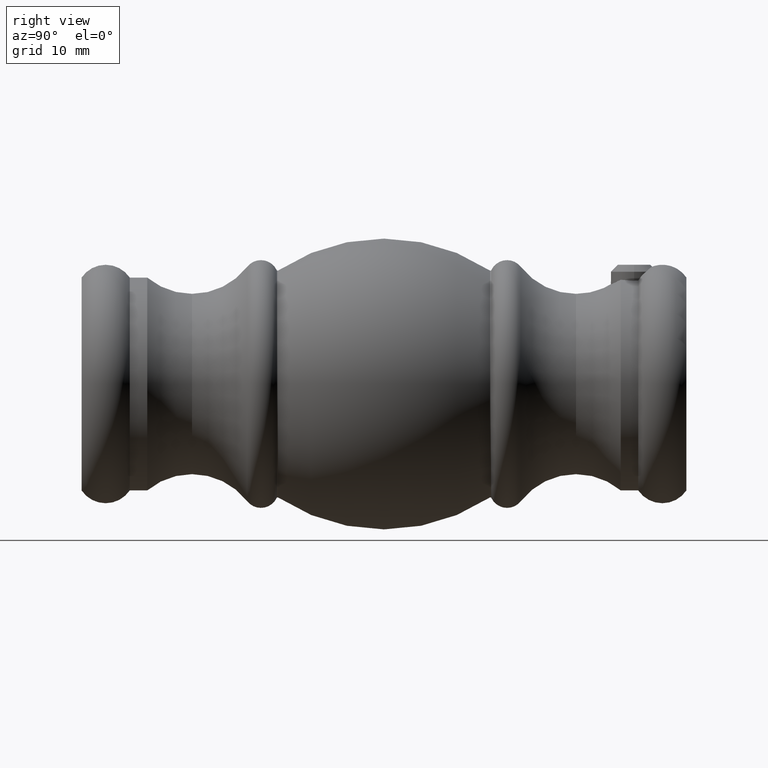
[diagram: clean part render]
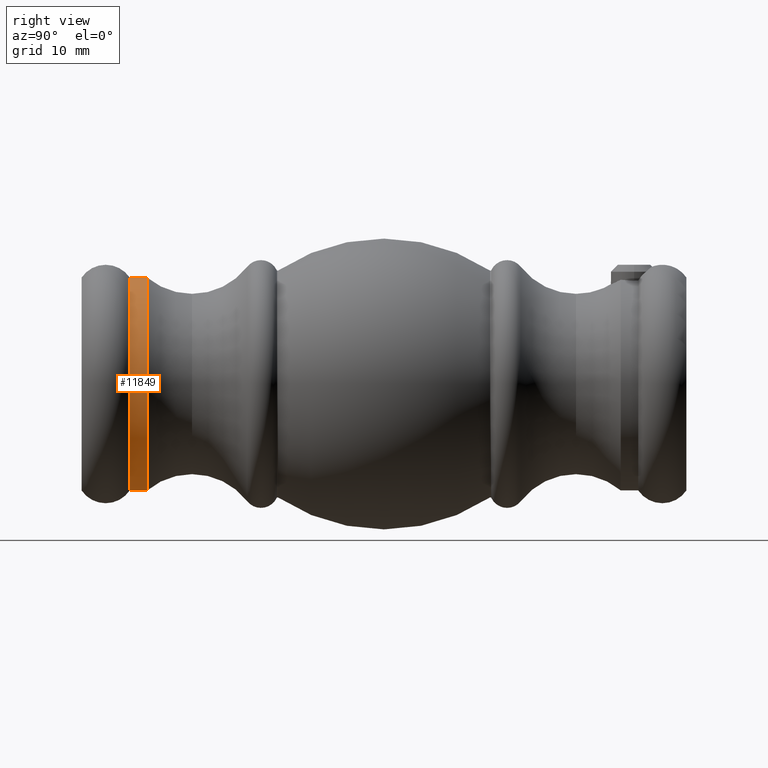
[diagram: same view with one face highlighted and labeled with its STEP entity id]
A machine part, right view. The second image highlights one B-rep face of the part: STEP entity #11849.
In plain terms, the highlighted cylindrical surface (partial cylindrical patch) has radius 9.15 mm, axis along (0, 1, 0).
Its self-contained STEP definition (entity closure, byte-faithful):
#485 = VECTOR ( 'NONE', #4523, 1000.000000000000000 ) ;
#1209 = ORIENTED_EDGE ( 'NONE', *, *, #4643, .T. ) ;
#1791 = CARTESIAN_POINT ( 'NONE',  ( 1.120551821219828538E-15, -20.35753696455839190, -9.150000000000002132 ) ) ;
#1953 = AXIS2_PLACEMENT_3D ( 'NONE', #5848, #13570, #6953 ) ;
#1996 = CARTESIAN_POINT ( 'NONE',  ( 1.120551821219828341E-15, 26.00000000000000000, -9.150000000000002132 ) ) ;
#2046 = DIRECTION ( 'NONE',  ( -0.000000000000000000, 1.000000000000000000, -0.000000000000000000 ) ) ;
#2659 = EDGE_CURVE ( 'NONE', #13337, #10804, #2929, .T. ) ;
#2929 = CIRCLE ( 'NONE', #1953, 9.150000000000002132 ) ;
#3452 = LINE ( 'NONE', #10084, #485 ) ;
#3798 = EDGE_CURVE ( 'NONE', #7414, #13337, #3452, .T. ) ;
#4523 = DIRECTION ( 'NONE',  ( -0.000000000000000000, 1.000000000000000000, -0.000000000000000000 ) ) ;
#4643 = EDGE_CURVE ( 'NONE', #13156, #10804, #11583, .T. ) ;
#5796 = CARTESIAN_POINT ( 'NONE',  ( 0.000000000000000000, -21.85753696455839190, 0.000000000000000000 ) ) ;
#5848 = CARTESIAN_POINT ( 'NONE',  ( 0.000000000000000000, -20.35753696455839190, 0.000000000000000000 ) ) ;
#6003 = AXIS2_PLACEMENT_3D ( 'NONE', #5796, #12352, #13469 ) ;
#6049 = VECTOR ( 'NONE', #2046, 1000.000000000000000 ) ;
#6649 = CARTESIAN_POINT ( 'NONE',  ( 1.120551821219828341E-15, -21.85753696455839190, -9.150000000000000355 ) ) ;
#6681 = AXIS2_PLACEMENT_3D ( 'NONE', #14313, #14264, #12038 ) ;
#6953 = DIRECTION ( 'NONE',  ( 0.000000000000000000, 0.000000000000000000, 1.000000000000000000 ) ) ;
#7184 = CARTESIAN_POINT ( 'NONE',  ( 0.000000000000000000, -20.35753696455839190, 9.150000000000002132 ) ) ;
#7414 = VERTEX_POINT ( 'NONE', #13356 ) ;
#7837 = EDGE_LOOP ( 'NONE', ( #10113, #1209, #13242, #9705 ) ) ;
#8009 = EDGE_CURVE ( 'NONE', #7414, #13156, #11352, .T. ) ;
#8387 = FACE_OUTER_BOUND ( 'NONE', #7837, .T. ) ;
#9705 = ORIENTED_EDGE ( 'NONE', *, *, #3798, .F. ) ;
#10084 = CARTESIAN_POINT ( 'NONE',  ( 0.000000000000000000, 26.00000000000000000, 9.150000000000002132 ) ) ;
#10113 = ORIENTED_EDGE ( 'NONE', *, *, #8009, .T. ) ;
#10120 = CYLINDRICAL_SURFACE ( 'NONE', #6681, 9.150000000000002132 ) ;
#10804 = VERTEX_POINT ( 'NONE', #1791 ) ;
#11352 = CIRCLE ( 'NONE', #6003, 9.150000000000000355 ) ;
#11583 = LINE ( 'NONE', #1996, #6049 ) ;
#11849 = ADVANCED_FACE ( 'NONE', ( #8387 ), #10120, .T. ) ;
#12038 = DIRECTION ( 'NONE',  ( 0.000000000000000000, 0.000000000000000000, 1.000000000000000000 ) ) ;
#12352 = DIRECTION ( 'NONE',  ( -0.000000000000000000, 1.000000000000000000, -0.000000000000000000 ) ) ;
#13156 = VERTEX_POINT ( 'NONE', #6649 ) ;
#13242 = ORIENTED_EDGE ( 'NONE', *, *, #2659, .F. ) ;
#13337 = VERTEX_POINT ( 'NONE', #7184 ) ;
#13356 = CARTESIAN_POINT ( 'NONE',  ( 0.000000000000000000, -21.85753696455839190, 9.150000000000000355 ) ) ;
#13469 = DIRECTION ( 'NONE',  ( 0.000000000000000000, 0.000000000000000000, 1.000000000000000000 ) ) ;
#13570 = DIRECTION ( 'NONE',  ( -0.000000000000000000, 1.000000000000000000, -0.000000000000000000 ) ) ;
#14264 = DIRECTION ( 'NONE',  ( -0.000000000000000000, 1.000000000000000000, -0.000000000000000000 ) ) ;
#14313 = CARTESIAN_POINT ( 'NONE',  ( 0.000000000000000000, 26.00000000000000000, 0.000000000000000000 ) ) ;